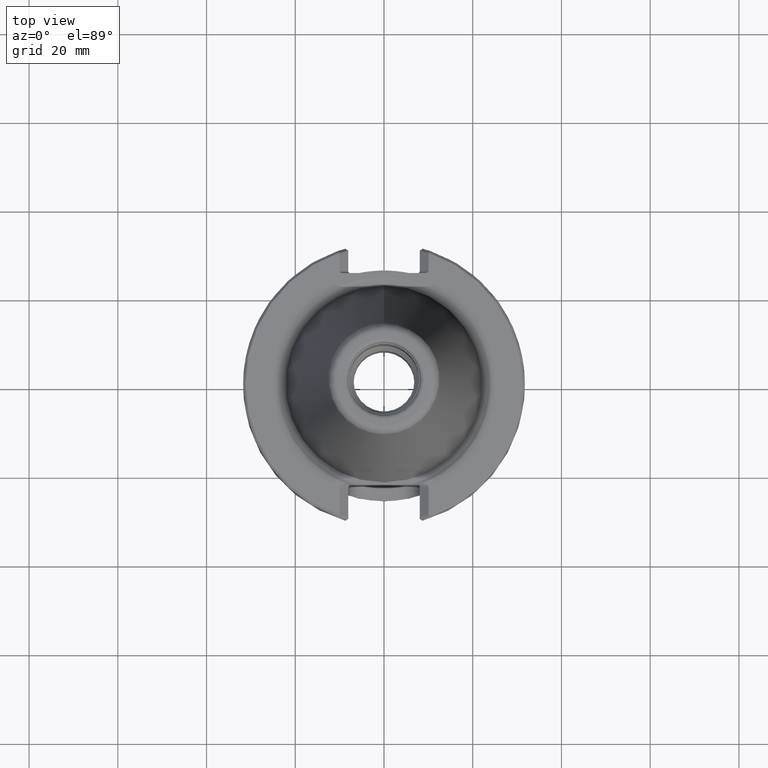
[diagram: clean part render]
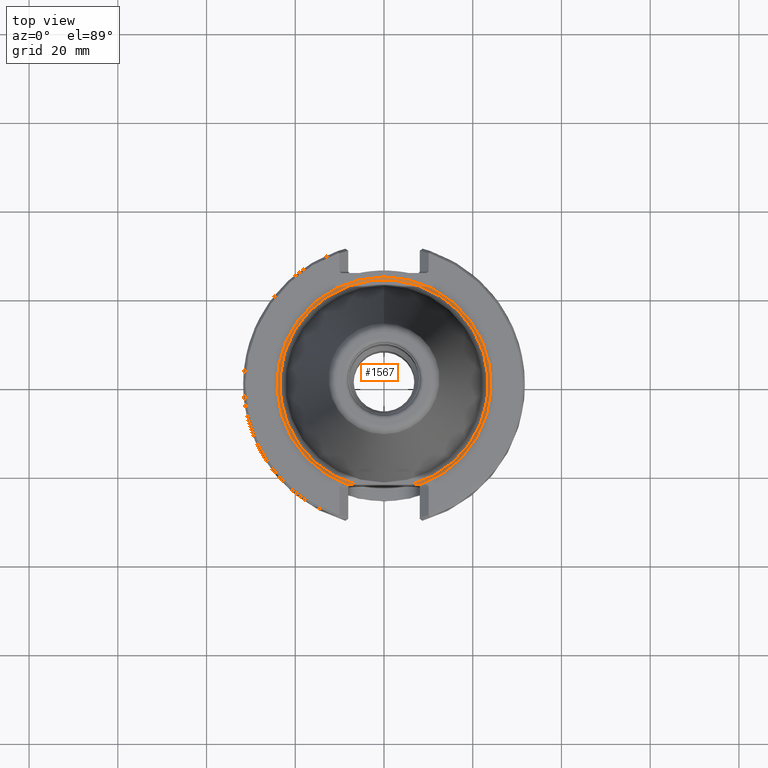
[diagram: same view with one face highlighted and labeled with its STEP entity id]
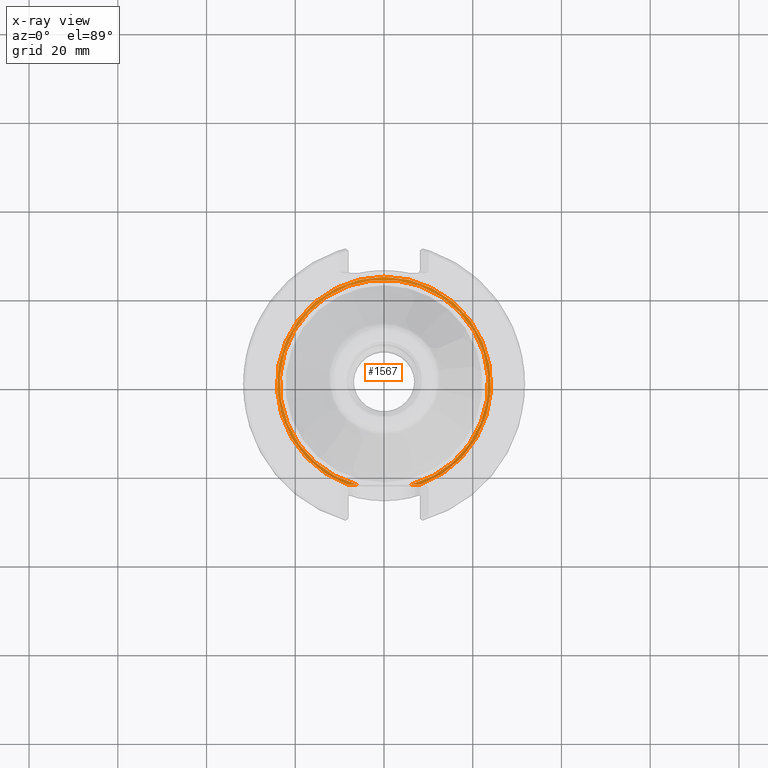
[diagram: x-ray of the same camera — body ghosted, the highlighted face saturated]
A machine part, top view. The second image highlights one B-rep face of the part: STEP entity #1567.
The next image is the same camera in x-ray: the body ghosted, the highlighted face saturated — about 0% of this face is hidden behind the body in this view.
In plain terms, the highlighted conical surface has half-angle 65 deg.
Its self-contained STEP definition (entity closure, byte-faithful):
#51 = ORIENTED_EDGE ( 'NONE', *, *, #1560, .T. ) ;
#87 = DIRECTION ( 'NONE',  ( 4.305936747837031113E-13, 1.000000000000000000, 8.637073427556814079E-15 ) ) ;
#353 = ORIENTED_EDGE ( 'NONE', *, *, #2091, .F. ) ;
#426 = AXIS2_PLACEMENT_3D ( 'NONE', #4661, #4229, #87 ) ;
#544 = DIRECTION ( 'NONE',  ( 0.000000000000000000, -1.000000000000000000, 0.000000000000000000 ) ) ;
#579 = CARTESIAN_POINT ( 'NONE',  ( 6.053276055162198688, -22.70699999999999719, -1.300000000000020917 ) ) ;
#583 = CARTESIAN_POINT ( 'NONE',  ( 6.053276055162198688, -22.70699999999999719, -1.300000000000020917 ) ) ;
#989 = CARTESIAN_POINT ( 'NONE',  ( -6.772556251540003736, -22.70700000000000074, -1.213604072979976412 ) ) ;
#1000 = CIRCLE ( 'NONE', #3401, 24.14335207619999935 ) ;
#1309 = AXIS2_PLACEMENT_3D ( 'NONE', #2330, #5533, #544 ) ;
#1475 = EDGE_CURVE ( 'NONE', #2514, #1795, #2279, .T. ) ;
#1502 = CONICAL_SURFACE ( 'NONE', #426, 3.414385594721949690, 1.134464013796939730 ) ;
#1560 = EDGE_CURVE ( 'NONE', #1998, #2514, #1811, .T. ) ;
#1567 = ADVANCED_FACE ( 'NONE', ( #3727 ), #1502, .F. ) ;
#1795 = VERTEX_POINT ( 'NONE', #583 ) ;
#1811 = B_SPLINE_CURVE_WITH_KNOTS ( 'NONE', 3,
 ( #2782, #5559, #989, #2841 ),
 .UNSPECIFIED., .F., .F.,
 ( 4, 4 ),
 ( 0.01432296875709999917, 0.01649092736440000220 ),
 .UNSPECIFIED. ) ;
#1978 = CARTESIAN_POINT ( 'NONE',  ( 8.203267670584583726, -22.70700000000000074, -0.9999999999644223481 ) ) ;
#1998 = VERTEX_POINT ( 'NONE', #3677 ) ;
#2032 = ORIENTED_EDGE ( 'NONE', *, *, #1475, .T. ) ;
#2058 = CARTESIAN_POINT ( 'NONE',  ( -3.491481338843133355E-15, 0.000000000000000000, -1.000000000000000000 ) ) ;
#2091 = EDGE_CURVE ( 'NONE', #1998, #2426, #1000, .T. ) ;
#2279 = CIRCLE ( 'NONE', #1309, 23.50000000000000000 ) ;
#2322 = CARTESIAN_POINT ( 'NONE',  ( 8.203267670584583726, -22.70700000000000074, -0.9999999999644223481 ) ) ;
#2330 = CARTESIAN_POINT ( 'NONE',  ( -4.538925740496073362E-15, 0.000000000000000000, -1.300000000000000044 ) ) ;
#2422 = CARTESIAN_POINT ( 'NONE',  ( 6.772481861179995732, -22.70700000000000074, -1.213613008340023613 ) ) ;
#2426 = VERTEX_POINT ( 'NONE', #2322 ) ;
#2431 = ORIENTED_EDGE ( 'NONE', *, *, #4117, .T. ) ;
#2499 = DIRECTION ( 'NONE',  ( -3.491481338843133355E-15, 0.000000000000000000, -1.000000000000000000 ) ) ;
#2514 = VERTEX_POINT ( 'NONE', #3334 ) ;
#2782 = CARTESIAN_POINT ( 'NONE',  ( -8.203267670581412929, -22.70700000000000074, -0.9999999999443177634 ) ) ;
#2841 = CARTESIAN_POINT ( 'NONE',  ( -6.053276055160004887, -22.70700000000000074, -1.299999999967395903 ) ) ;
#3334 = CARTESIAN_POINT ( 'NONE',  ( -6.053276055160004887, -22.70700000000000074, -1.299999999967395903 ) ) ;
#3401 = AXIS2_PLACEMENT_3D ( 'NONE', #2058, #2499, #4306 ) ;
#3677 = CARTESIAN_POINT ( 'NONE',  ( -8.203267670581412929, -22.70700000000000074, -0.9999999999443177634 ) ) ;
#3727 = FACE_OUTER_BOUND ( 'NONE', #3829, .T. ) ;
#3829 = EDGE_LOOP ( 'NONE', ( #353, #51, #2032, #2431 ) ) ;
#4117 = EDGE_CURVE ( 'NONE', #1795, #2426, #5819, .T. ) ;
#4229 = DIRECTION ( 'NONE',  ( 1.047683257231023177E-12, -8.525608269831760839E-15, 1.000000000000000000 ) ) ;
#4234 = CARTESIAN_POINT ( 'NONE',  ( 7.489060800329996326, -22.70700000000000074, -1.113158162450026190 ) ) ;
#4306 = DIRECTION ( 'NONE',  ( 0.000000000000000000, -1.000000000000000000, 0.000000000000000000 ) ) ;
#4661 = CARTESIAN_POINT ( 'NONE',  ( 6.547060954277700840E-13, -1.599831378484850171E-12, -10.66607581588800002 ) ) ;
#5533 = DIRECTION ( 'NONE',  ( -3.491481338843133355E-15, 0.000000000000000000, -1.000000000000000000 ) ) ;
#5559 = CARTESIAN_POINT ( 'NONE',  ( -7.489132190810003031, -22.70700000000000074, -1.113146851419973826 ) ) ;
#5819 = B_SPLINE_CURVE_WITH_KNOTS ( 'NONE', 3,
 ( #579, #2422, #4234, #1978 ),
 .UNSPECIFIED., .F., .F.,
 ( 4, 4 ),
 ( 0.02853294437960000179, 0.03070476185250000170 ),
 .UNSPECIFIED. ) ;